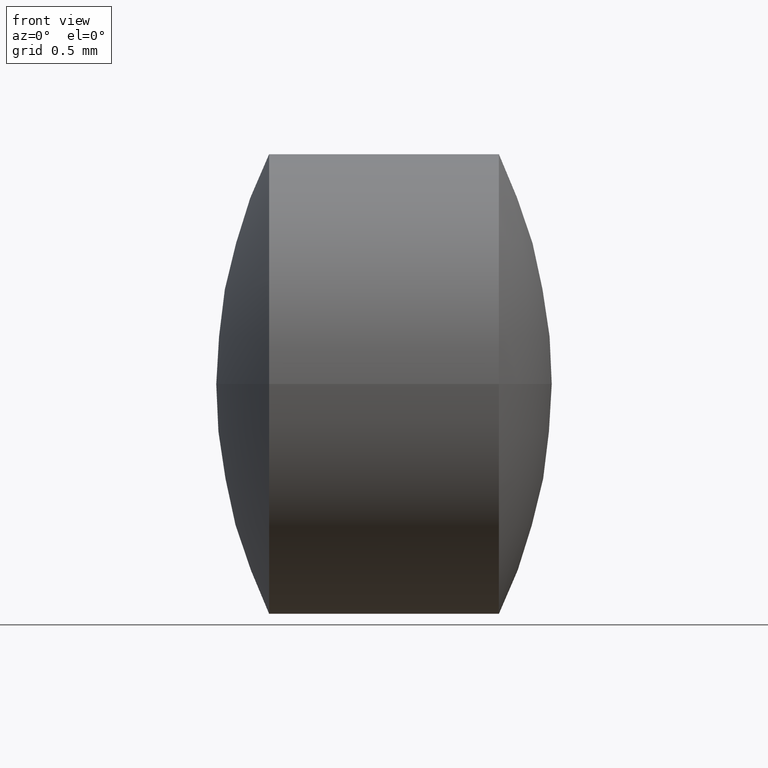
[diagram: clean part render]
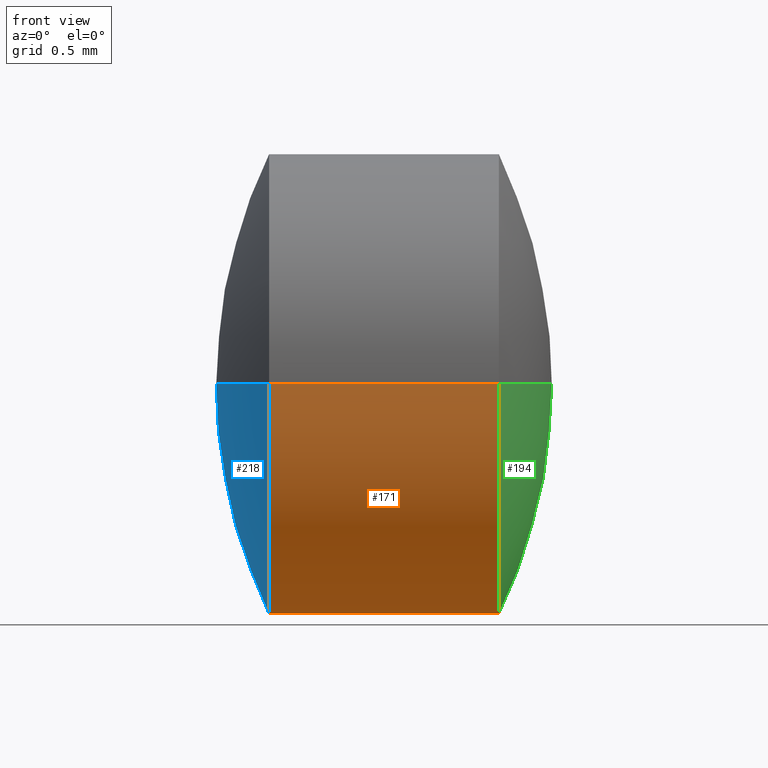
[diagram: same view with three faces highlighted in distinct colors, each labeled with its STEP entity id]
A machine part, front view with three faces highlighted in distinct colors.
Their STEP definitions:

[orange] entity #171 — the highlighted cylindrical surface (partial cylindrical patch) has radius 1 mm, axis along (-1, -0, -0).
#4 = DIRECTION ( 'NONE',  ( 1.214306433183652800E-014, -1.000000000000000000, 0.0000000000000000000 ) ) ;
#6 = DIRECTION ( 'NONE',  ( -1.000000000000000000, -1.235158047084468200E-014, -0.0000000000000000000 ) ) ;
#10 = CARTESIAN_POINT ( 'NONE',  ( 7.307731793281250900, 2.828040395526708400, 0.0000000000000000000 ) ) ;
#15 = EDGE_CURVE ( 'NONE', #16, #241, #292, .T. ) ;
#16 = VERTEX_POINT ( 'NONE', #10 ) ;
#27 = CIRCLE ( 'NONE', #82, 1.000000000000080200 ) ;
#35 = CYLINDRICAL_SURFACE ( 'NONE', #185, 1.000000000000086400 ) ;
#41 = VECTOR ( 'NONE', #221, 1000.000000000000000 ) ;
#49 = DIRECTION ( 'NONE',  ( -1.000000000000000000, -1.235158047084468200E-014, -0.0000000000000000000 ) ) ;
#53 = CARTESIAN_POINT ( 'NONE',  ( 7.307731793281239300, 3.828040395526784800, 0.0000000000000000000 ) ) ;
#55 = ORIENTED_EDGE ( 'NONE', *, *, #273, .F. ) ;
#82 = AXIS2_PLACEMENT_3D ( 'NONE', #53, #237, #141 ) ;
#84 = VERTEX_POINT ( 'NONE', #195 ) ;
#94 = CIRCLE ( 'NONE', #95, 1.000000000000092400 ) ;
#95 = AXIS2_PLACEMENT_3D ( 'NONE', #137, #49, #4 ) ;
#96 = ORIENTED_EDGE ( 'NONE', *, *, #236, .F. ) ;
#99 = CARTESIAN_POINT ( 'NONE',  ( 5.854222006274776300, 3.828040395526767000, 0.0000000000000000000 ) ) ;
#137 = CARTESIAN_POINT ( 'NONE',  ( 6.307731793281238500, 3.828040395526772800, 0.0000000000000000000 ) ) ;
#139 = VERTEX_POINT ( 'NONE', #151 ) ;
#141 = DIRECTION ( 'NONE',  ( 1.214306433183667600E-014, -1.000000000000000000, 0.0000000000000000000 ) ) ;
#151 = CARTESIAN_POINT ( 'NONE',  ( 7.307731793281226900, 4.828040395526868700, 1.224646799147445900E-016 ) ) ;
#153 = VECTOR ( 'NONE', #254, 1000.000000000000000 ) ;
#158 = EDGE_CURVE ( 'NONE', #139, #16, #27, .T. ) ;
#168 = DIRECTION ( 'NONE',  ( 1.214306433183660000E-014, -1.000000000000000000, 0.0000000000000000000 ) ) ;
#171 = ADVANCED_FACE ( 'NONE', ( #207 ), #35, .T. ) ;
#185 = AXIS2_PLACEMENT_3D ( 'NONE', #99, #6, #168 ) ;
#189 = CARTESIAN_POINT ( 'NONE',  ( 5.854222006274787800, 2.828040395526680900, 0.0000000000000000000 ) ) ;
#191 = CARTESIAN_POINT ( 'NONE',  ( 6.307731793281251800, 2.828040395526657300, -1.224646799147485600E-016 ) ) ;
#195 = CARTESIAN_POINT ( 'NONE',  ( 6.307731793281227800, 4.828040395526881100, 0.0000000000000000000 ) ) ;
#207 = FACE_OUTER_BOUND ( 'NONE', #252, .T. ) ;
#221 = DIRECTION ( 'NONE',  ( -1.000000000000000000, -1.235158047084468200E-014, -0.0000000000000000000 ) ) ;
#236 = EDGE_CURVE ( 'NONE', #84, #241, #94, .T. ) ;
#237 = DIRECTION ( 'NONE',  ( -1.000000000000000000, -1.235158047084468200E-014, -0.0000000000000000000 ) ) ;
#241 = VERTEX_POINT ( 'NONE', #191 ) ;
#248 = ORIENTED_EDGE ( 'NONE', *, *, #158, .T. ) ;
#252 = EDGE_LOOP ( 'NONE', ( #55, #248, #258, #96 ) ) ;
#254 = DIRECTION ( 'NONE',  ( -1.000000000000000000, -1.235158047084468200E-014, -0.0000000000000000000 ) ) ;
#258 = ORIENTED_EDGE ( 'NONE', *, *, #15, .T. ) ;
#262 = LINE ( 'NONE', #305, #153 ) ;
#273 = EDGE_CURVE ( 'NONE', #139, #84, #262, .T. ) ;
#292 = LINE ( 'NONE', #189, #41 ) ;
#305 = CARTESIAN_POINT ( 'NONE',  ( 5.854222006274763900, 4.828040395526852700, 1.224646799147458700E-016 ) ) ;

[blue] entity #218 — the highlighted spherical surface has radius 2.2889 mm.
#3 = EDGE_CURVE ( 'NONE', #84, #253, #224, .T. ) ;
#4 = DIRECTION ( 'NONE',  ( 1.214306433183652800E-014, -1.000000000000000000, 0.0000000000000000000 ) ) ;
#17 = AXIS2_PLACEMENT_3D ( 'NONE', #233, #119, #281 ) ;
#20 = AXIS2_PLACEMENT_3D ( 'NONE', #270, #86, #182 ) ;
#29 = DIRECTION ( 'NONE',  ( -0.0000000000000000000, 0.0000000000000000000, -1.000000000000000000 ) ) ;
#37 = ORIENTED_EDGE ( 'NONE', *, *, #3, .F. ) ;
#43 = EDGE_CURVE ( 'NONE', #241, #253, #214, .T. ) ;
#46 = EDGE_LOOP ( 'NONE', ( #209, #201, #37 ) ) ;
#49 = DIRECTION ( 'NONE',  ( -1.000000000000000000, -1.235158047084468200E-014, -0.0000000000000000000 ) ) ;
#56 = AXIS2_PLACEMENT_3D ( 'NONE', #138, #29, #190 ) ;
#84 = VERTEX_POINT ( 'NONE', #195 ) ;
#86 = DIRECTION ( 'NONE',  ( -0.0000000000000000000, 0.0000000000000000000, 1.000000000000000000 ) ) ;
#94 = CIRCLE ( 'NONE', #95, 1.000000000000092400 ) ;
#95 = AXIS2_PLACEMENT_3D ( 'NONE', #137, #49, #4 ) ;
#119 = DIRECTION ( 'NONE',  ( -1.512632348803089900E-030, 1.224646799147353200E-016, -1.000000000000000000 ) ) ;
#137 = CARTESIAN_POINT ( 'NONE',  ( 6.307731793281238500, 3.828040395526772800, 0.0000000000000000000 ) ) ;
#138 = CARTESIAN_POINT ( 'NONE',  ( 8.366644836758903000, 3.828040395526791000, 0.0000000000000000000 ) ) ;
#157 = SPHERICAL_SURFACE ( 'NONE', #56, 2.288913043477780500 ) ;
#180 = CARTESIAN_POINT ( 'NONE',  ( 6.077731793281122600, 3.828040395526763000, 0.0000000000000000000 ) ) ;
#182 = DIRECTION ( 'NONE',  ( 1.000000000000000000, 0.0000000000000000000, 0.0000000000000000000 ) ) ;
#190 = DIRECTION ( 'NONE',  ( -1.212609438996293800E-014, 1.000000000000000000, 0.0000000000000000000 ) ) ;
#191 = CARTESIAN_POINT ( 'NONE',  ( 6.307731793281251800, 2.828040395526657300, -1.224646799147485600E-016 ) ) ;
#195 = CARTESIAN_POINT ( 'NONE',  ( 6.307731793281227800, 4.828040395526881100, 0.0000000000000000000 ) ) ;
#201 = ORIENTED_EDGE ( 'NONE', *, *, #43, .T. ) ;
#209 = ORIENTED_EDGE ( 'NONE', *, *, #236, .T. ) ;
#214 = CIRCLE ( 'NONE', #17, 2.288913043477780900 ) ;
#218 = ADVANCED_FACE ( 'NONE', ( #222 ), #157, .T. ) ;
#222 = FACE_OUTER_BOUND ( 'NONE', #46, .T. ) ;
#224 = CIRCLE ( 'NONE', #20, 2.288913043477780500 ) ;
#233 = CARTESIAN_POINT ( 'NONE',  ( 8.366644836758903000, 3.828040395526791000, 0.0000000000000000000 ) ) ;
#236 = EDGE_CURVE ( 'NONE', #84, #241, #94, .T. ) ;
#241 = VERTEX_POINT ( 'NONE', #191 ) ;
#253 = VERTEX_POINT ( 'NONE', #180 ) ;
#270 = CARTESIAN_POINT ( 'NONE',  ( 8.366644836758903000, 3.828040395526791000, 0.0000000000000000000 ) ) ;
#281 = DIRECTION ( 'NONE',  ( 0.0000000000000000000, 1.000000000000000000, 1.224646799147353000E-016 ) ) ;

[green] entity #194 — the highlighted spherical surface has radius 2.2889 mm.
#10 = CARTESIAN_POINT ( 'NONE',  ( 7.307731793281250900, 2.828040395526708400, 0.0000000000000000000 ) ) ;
#16 = VERTEX_POINT ( 'NONE', #10 ) ;
#27 = CIRCLE ( 'NONE', #82, 1.000000000000080200 ) ;
#50 = CARTESIAN_POINT ( 'NONE',  ( 5.248818749803096000, 3.828040395526767000, 0.0000000000000000000 ) ) ;
#53 = CARTESIAN_POINT ( 'NONE',  ( 7.307731793281239300, 3.828040395526784800, 0.0000000000000000000 ) ) ;
#65 = AXIS2_PLACEMENT_3D ( 'NONE', #98, #217, #260 ) ;
#74 = DIRECTION ( 'NONE',  ( -0.0000000000000000000, 0.0000000000000000000, 1.000000000000000000 ) ) ;
#82 = AXIS2_PLACEMENT_3D ( 'NONE', #53, #237, #141 ) ;
#91 = DIRECTION ( 'NONE',  ( 0.0000000000000000000, -1.000000000000000000, -1.224646799147353000E-016 ) ) ;
#98 = CARTESIAN_POINT ( 'NONE',  ( 5.248818749803096000, 3.828040395526767000, 0.0000000000000000000 ) ) ;
#104 = CIRCLE ( 'NONE', #300, 2.288913043478189900 ) ;
#115 = AXIS2_PLACEMENT_3D ( 'NONE', #193, #74, #219 ) ;
#122 = EDGE_LOOP ( 'NONE', ( #288, #140, #173 ) ) ;
#139 = VERTEX_POINT ( 'NONE', #151 ) ;
#140 = ORIENTED_EDGE ( 'NONE', *, *, #155, .T. ) ;
#141 = DIRECTION ( 'NONE',  ( 1.214306433183667600E-014, -1.000000000000000000, 0.0000000000000000000 ) ) ;
#147 = CIRCLE ( 'NONE', #65, 2.288913043478189900 ) ;
#151 = CARTESIAN_POINT ( 'NONE',  ( 7.307731793281226900, 4.828040395526868700, 1.224646799147445900E-016 ) ) ;
#155 = EDGE_CURVE ( 'NONE', #246, #16, #147, .T. ) ;
#158 = EDGE_CURVE ( 'NONE', #139, #16, #27, .T. ) ;
#172 = EDGE_CURVE ( 'NONE', #246, #139, #104, .T. ) ;
#173 = ORIENTED_EDGE ( 'NONE', *, *, #158, .F. ) ;
#193 = CARTESIAN_POINT ( 'NONE',  ( 5.248818749803096000, 3.828040395526767000, 0.0000000000000000000 ) ) ;
#194 = ADVANCED_FACE ( 'NONE', ( #228 ), #280, .T. ) ;
#217 = DIRECTION ( 'NONE',  ( 0.0000000000000000000, 0.0000000000000000000, -1.000000000000000000 ) ) ;
#219 = DIRECTION ( 'NONE',  ( 1.250503483964704600E-014, -1.000000000000000000, 0.0000000000000000000 ) ) ;
#228 = FACE_OUTER_BOUND ( 'NONE', #122, .T. ) ;
#237 = DIRECTION ( 'NONE',  ( -1.000000000000000000, -1.235158047084468200E-014, -0.0000000000000000000 ) ) ;
#240 = DIRECTION ( 'NONE',  ( 1.512632348803089900E-030, -1.224646799147353200E-016, 1.000000000000000000 ) ) ;
#246 = VERTEX_POINT ( 'NONE', #259 ) ;
#259 = CARTESIAN_POINT ( 'NONE',  ( 7.537731793281286000, 3.828040395526795400, 0.0000000000000000000 ) ) ;
#260 = DIRECTION ( 'NONE',  ( -1.000000000000000000, 0.0000000000000000000, 0.0000000000000000000 ) ) ;
#280 = SPHERICAL_SURFACE ( 'NONE', #115, 2.288913043478189900 ) ;
#288 = ORIENTED_EDGE ( 'NONE', *, *, #172, .F. ) ;
#300 = AXIS2_PLACEMENT_3D ( 'NONE', #50, #240, #91 ) ;